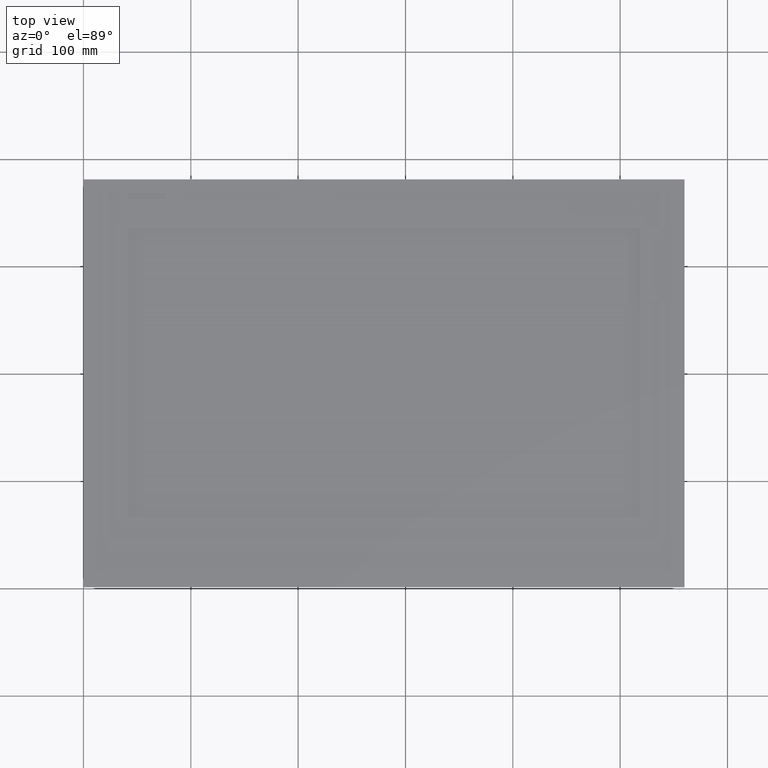
[diagram: clean part render]
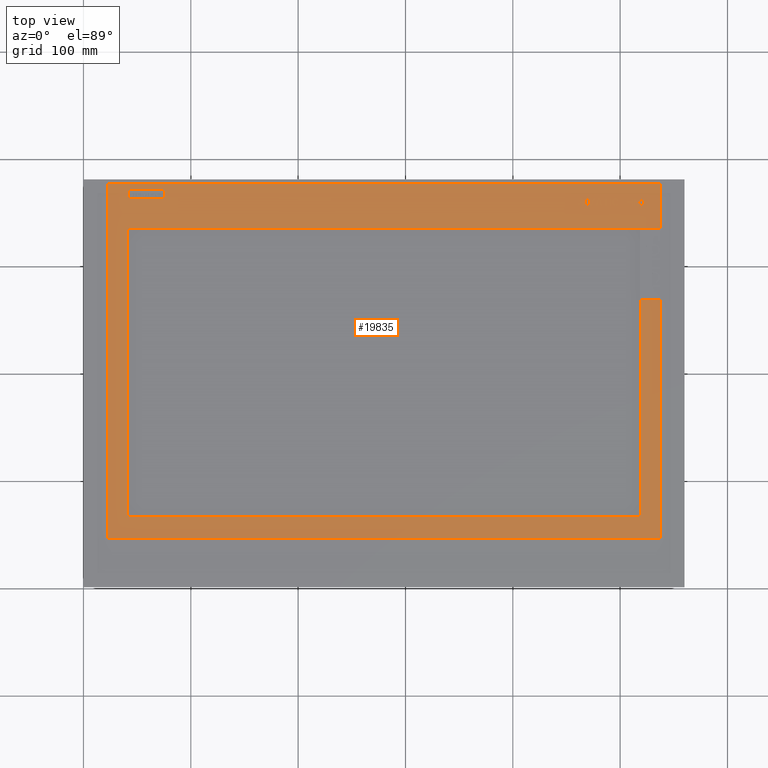
[diagram: same view with one face highlighted and labeled with its STEP entity id]
A machine part, top view. The second image highlights one B-rep face of the part: STEP entity #19835.
In plain terms, the highlighted planar face has unit normal (0, 0, 1).
Its self-contained STEP definition (entity closure, byte-faithful):
#4476=LINE('',#67756,#9822);
#4477=LINE('',#67759,#9823);
#4478=LINE('',#67761,#9824);
#4479=LINE('',#67763,#9825);
#4480=LINE('',#67765,#9826);
#4481=LINE('',#67767,#9827);
#4482=LINE('',#67769,#9828);
#4483=LINE('',#67771,#9829);
#4484=LINE('',#67773,#9830);
#4485=LINE('',#67775,#9831);
#4486=LINE('',#67777,#9832);
#4487=LINE('',#67778,#9833);
#4488=LINE('',#67781,#9834);
#4489=LINE('',#67783,#9835);
#4490=LINE('',#67785,#9836);
#9822=VECTOR('',#55944,1.);
#9823=VECTOR('',#55945,1.);
#9824=VECTOR('',#55946,1.);
#9825=VECTOR('',#55947,1.);
#9826=VECTOR('',#55948,1.);
#9827=VECTOR('',#55949,1.);
#9828=VECTOR('',#55950,1.);
#9829=VECTOR('',#55951,1.);
#9830=VECTOR('',#55952,1.);
#9831=VECTOR('',#55953,1.);
#9832=VECTOR('',#55954,1.);
#9833=VECTOR('',#55955,1.);
#9834=VECTOR('',#55956,1.);
#9835=VECTOR('',#55957,1.);
#9836=VECTOR('',#55958,1.);
#17410=PLANE('',#51504);
#19835=ADVANCED_FACE('',(#22517,#22518),#17410,.T.);
#22517=FACE_BOUND('',#23530,.T.);
#22518=FACE_BOUND('',#23531,.T.);
#23530=EDGE_LOOP('',(#28224,#28225,#28226,#28227,#28228,#28229,#28230,#28231,
#28232,#28233,#28234));
#23531=EDGE_LOOP('',(#28235,#28236,#28237,#28238));
#28224=ORIENTED_EDGE('',*,*,#44831,.F.);
#28225=ORIENTED_EDGE('',*,*,#44832,.T.);
#28226=ORIENTED_EDGE('',*,*,#44833,.T.);
#28227=ORIENTED_EDGE('',*,*,#44834,.T.);
#28228=ORIENTED_EDGE('',*,*,#44835,.T.);
#28229=ORIENTED_EDGE('',*,*,#44836,.F.);
#28230=ORIENTED_EDGE('',*,*,#44837,.F.);
#28231=ORIENTED_EDGE('',*,*,#44838,.F.);
#28232=ORIENTED_EDGE('',*,*,#44839,.F.);
#28233=ORIENTED_EDGE('',*,*,#44840,.F.);
#28234=ORIENTED_EDGE('',*,*,#44841,.F.);
#28235=ORIENTED_EDGE('',*,*,#44842,.T.);
#28236=ORIENTED_EDGE('',*,*,#44843,.T.);
#28237=ORIENTED_EDGE('',*,*,#44844,.T.);
#28238=ORIENTED_EDGE('',*,*,#44845,.T.);
#40048=VERTEX_POINT('',#67757);
#40049=VERTEX_POINT('',#67758);
#40050=VERTEX_POINT('',#67760);
#40051=VERTEX_POINT('',#67762);
#40052=VERTEX_POINT('',#67764);
#40053=VERTEX_POINT('',#67766);
#40054=VERTEX_POINT('',#67768);
#40055=VERTEX_POINT('',#67770);
#40056=VERTEX_POINT('',#67772);
#40057=VERTEX_POINT('',#67774);
#40058=VERTEX_POINT('',#67776);
#40059=VERTEX_POINT('',#67779);
#40060=VERTEX_POINT('',#67780);
#40061=VERTEX_POINT('',#67782);
#40062=VERTEX_POINT('',#67784);
#44831=EDGE_CURVE('',#40048,#40049,#4476,.T.);
#44832=EDGE_CURVE('',#40048,#40050,#4477,.T.);
#44833=EDGE_CURVE('',#40050,#40051,#4478,.T.);
#44834=EDGE_CURVE('',#40051,#40052,#4479,.T.);
#44835=EDGE_CURVE('',#40052,#40053,#4480,.T.);
#44836=EDGE_CURVE('',#40054,#40053,#4481,.T.);
#44837=EDGE_CURVE('',#40055,#40054,#4482,.T.);
#44838=EDGE_CURVE('',#40056,#40055,#4483,.T.);
#44839=EDGE_CURVE('',#40057,#40056,#4484,.T.);
#44840=EDGE_CURVE('',#40058,#40057,#4485,.T.);
#44841=EDGE_CURVE('',#40049,#40058,#4486,.T.);
#44842=EDGE_CURVE('',#40059,#40060,#4487,.T.);
#44843=EDGE_CURVE('',#40060,#40061,#4488,.T.);
#44844=EDGE_CURVE('',#40061,#40062,#4489,.T.);
#44845=EDGE_CURVE('',#40062,#40059,#4490,.T.);
#51504=AXIS2_PLACEMENT_3D('',#67786,#55959,#55960);
#55944=DIRECTION('',(-1.,1.47921646084896E-015,0.));
#55945=DIRECTION('',(0.,1.,0.));
#55946=DIRECTION('',(1.,0.,0.));
#55947=DIRECTION('',(0.,-1.,0.));
#55948=DIRECTION('',(-1.,0.,0.));
#55949=DIRECTION('',(1.,0.,0.));
#55950=DIRECTION('',(1.18603707485821E-008,1.,0.));
#55951=DIRECTION('',(-1.,0.,0.));
#55952=DIRECTION('',(1.18744629363951E-008,-1.,0.));
#55953=DIRECTION('',(1.,0.,0.));
#55954=DIRECTION('',(1.72729694792926E-008,1.,0.));
#55955=DIRECTION('',(-1.,0.,0.));
#55956=DIRECTION('',(0.,1.,0.));
#55957=DIRECTION('',(1.,-8.21170876202038E-016,0.));
#55958=DIRECTION('',(0.,-1.,0.));
#55959=DIRECTION('',(0.,0.,1.));
#55960=DIRECTION('',(1.,0.,0.));
#67756=CARTESIAN_POINT('',(-238.62,-113.764514782699,3.25));
#67757=CARTESIAN_POINT('',(-238.62,-113.764514782699,3.25));
#67758=CARTESIAN_POINT('',(-257.383701155475,-113.764514782699,3.25));
#67759=CARTESIAN_POINT('',(-238.62,-179.905,3.25));
#67760=CARTESIAN_POINT('',(-238.62,88.8050000000001,3.25));
#67761=CARTESIAN_POINT('',(-238.62,88.805,3.25));
#67762=CARTESIAN_POINT('',(238.62,88.805,3.25));
#67763=CARTESIAN_POINT('',(238.62,88.805,3.25));
#67764=CARTESIAN_POINT('',(238.62,-179.905,3.25));
#67765=CARTESIAN_POINT('',(238.62,-179.905,3.25));
#67766=CARTESIAN_POINT('',(-238.62,-179.905,3.25));
#67767=CARTESIAN_POINT('',(-257.383701901166,-179.905,3.25));
#67768=CARTESIAN_POINT('',(-257.383701901166,-179.905,3.25));
#67769=CARTESIAN_POINT('',(-257.383702397584,-221.7601106157,3.25));
#67770=CARTESIAN_POINT('',(-257.383702397584,-221.7601106157,3.25));
#67771=CARTESIAN_POINT('',(257.383702398019,-221.7601106157,3.25));
#67772=CARTESIAN_POINT('',(257.383702398019,-221.7601106157,3.25));
#67773=CARTESIAN_POINT('',(257.383698472735,108.805,3.25));
#67774=CARTESIAN_POINT('',(257.383698472735,108.805,3.25));
#67775=CARTESIAN_POINT('',(-257.383697311038,108.805,3.25));
#67776=CARTESIAN_POINT('',(-257.383697311038,108.805,3.25));
#67777=CARTESIAN_POINT('',(-257.383701155475,-113.764514782699,3.25));
#67778=CARTESIAN_POINT('',(238.453900845284,-216.591995346196,3.25));
#67779=CARTESIAN_POINT('',(238.453900845284,-216.591995346196,3.25));
#67780=CARTESIAN_POINT('',(204.653900845284,-216.591995346196,3.25));
#67781=CARTESIAN_POINT('',(204.653900845284,-216.591995346196,3.25));
#67782=CARTESIAN_POINT('',(204.653900845284,-207.491995346196,3.25));
#67783=CARTESIAN_POINT('',(204.653900845284,-207.491995346196,3.25));
#67784=CARTESIAN_POINT('',(238.453900845284,-207.491995346196,3.25));
#67785=CARTESIAN_POINT('',(238.453900845284,-207.491995346196,3.25));
#67786=CARTESIAN_POINT('',(-238.62,-113.764514782699,3.25));